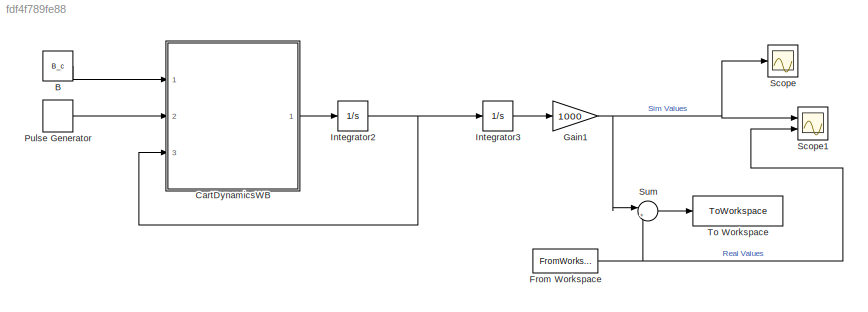
MODEL slx_fdf4f789fe88
KIND model
CONFIG AbsTol = auto
CONFIG EnableMultiTasking = off
CONFIG FixedStep = 0.002
CONFIG MaxStep = auto
CONFIG MinStep = auto
CONFIG RelTol = 1e-3
CONFIG SampleTimeConstraint = Unconstrained
CONFIG SolverName = ode1
CONFIG StartTime = 0.0
CONFIG StopTime = 30
BLOCK [Constant] B
  Value = B_c
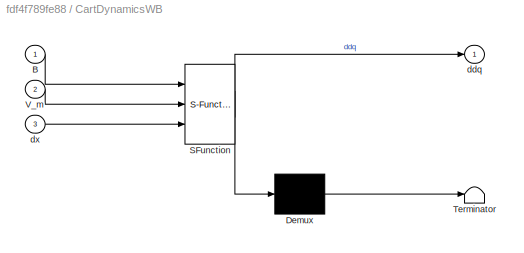
BLOCK [SubSystem] CartDynamicsWB
  ErrorFcn = Stateflow.Translate.translate
  PermitHierarchicalResolution = ExplicitOnly
  Ports = [3, 1]
  RequestExecContextInheritance = off
  SFBlockType = MATLAB Function
  TreatAsAtomicUnit = on
BLOCK [Demux] CartDynamicsWB/ Demux 
  Outputs = 1
  Ports = [1, 1]
BLOCK [S-Function] CartDynamicsWB/ SFunction 
  EnableBusSupport = on
  FunctionName = sf_sfun
  PortCounts = [3 2]
  Ports = [3, 2]
  SFcnIsStateOwnerBlock = off
  SFunctionDeploymentMode = off
  Tag = Stateflow S-Function 1
BLOCK [Terminator] CartDynamicsWB/ Terminator 
BLOCK [Inport] CartDynamicsWB/B
BLOCK [Inport] CartDynamicsWB/V_m
  Port = 2
BLOCK [Outport] CartDynamicsWB/ddq
BLOCK [Inport] CartDynamicsWB/dx
  Port = 3
BLOCK [FromWorkspace] From Workspace
  OutDataTypeStr = double
  VariableName = data_xc
BLOCK [Gain] Gain1
  Gain = 1000
BLOCK [Integrator] Integrator2
  Ports = [1, 1]
BLOCK [Integrator] Integrator3
  Ports = [1, 1]
BLOCK [DiscretePulseGenerator] Pulse Generator
  Amplitude = 4
  Period = 100
  PhaseDelay = 2
  Ports = [0, 1]
  PulseType = Time based
  PulseWidth = 0.1
BLOCK [Scope] Scope
  Floating = off
  NumInputPorts = 1
  Ports = [1]
  ScopeSpecificationString = Simulink.scopes.TimeScopeBlockCfg('CurrentConfiguration', extmgr.ConfigurationSet(extmgr.Configuration('Core','General UI',true),extmgr.Configuration('Core','Source UI',true),extmgr.Configuration('Sources','WiredSimulink',true,'DataLoggingVariableName','Cart_SIM','DataLogging',true,'DataLoggingSaveFormat','Array'),extmgr.Configuration('Visuals','Time Domain',true,'SerializedDisplays',{struct('MinY...<+1418ch>
BLOCK [Scope] Scope1
  Floating = off
  NumInputPorts = 2
  Ports = [2]
  ScopeSpecificationString = Simulink.scopes.TimeScopeBlockCfg('CurrentConfiguration', extmgr.ConfigurationSet(extmgr.Configuration('Core','General UI',true),extmgr.Configuration('Core','Source UI',true),extmgr.Configuration('Sources','WiredSimulink',true,'DataLoggingVariableName','ScopeData1'),extmgr.Configuration('Visuals','Time Domain',true,'SerializedDisplays',{struct('MinYLimReal','-5.38867','MaxYLimReal','48.49802','YLa...<+1459ch>
BLOCK [Sum] Sum
  Inputs = |+-
  Ports = [2, 1]
BLOCK [ToWorkspace] To Workspace
  FixptAsFi = on
  MaxDataPoints = inf
  Ports = [1]
  SampleTime = -1
  SaveFormat = Timeseries
  VariableName = resnorm
LINE B:1 -> CartDynamicsWB:1
LINE CartDynamicsWB:1 -> Integrator2:1
NET From Workspace:1 -> Scope1:2, Sum:2
NET Gain1:1 -> Scope1:1, Scope:1, Sum:1
NET Integrator2:1 -> CartDynamicsWB:3, Integrator3:1
LINE Integrator3:1 -> Gain1:1
LINE Pulse Generator:1 -> CartDynamicsWB:2
LINE Sum:1 -> To Workspace:1
note: NET lines group one-source signal fan-out (src -> all destinations, sorted); 1:1 wires keep LINE
CHART CartDynamicsWB states=1 transitions=1
  STATE_LABEL 'eML_blk_kernel()'
  STATE_LABEL 'SCRIPT:\nfunction ddq = CartDynamicsWB(B,V_m,dx)\n%#codegen\n\n%    This function was generated by the Symbolic Math Toolbox version 8.7.\n%    07-Sep-2022 11:10:39\n\nR_m = 2.6; \nk_t = 0.00767;\nn_m = 1;\nk_m = 0.00767;\nK_g = 3.71;\nn_g = 1;\nr_mp = 6.35*10^(-3);\n\nm_c = 0.57;\n\nddq = -(B.*dx-(K_g.*k_t.*n_g.*n_m.*1.0./r_mp.^2.*(V_m.*r_mp-K_g.*dx.*k_m))./R_m)./m_c;\n'
CHART  states=0 transitions=0
